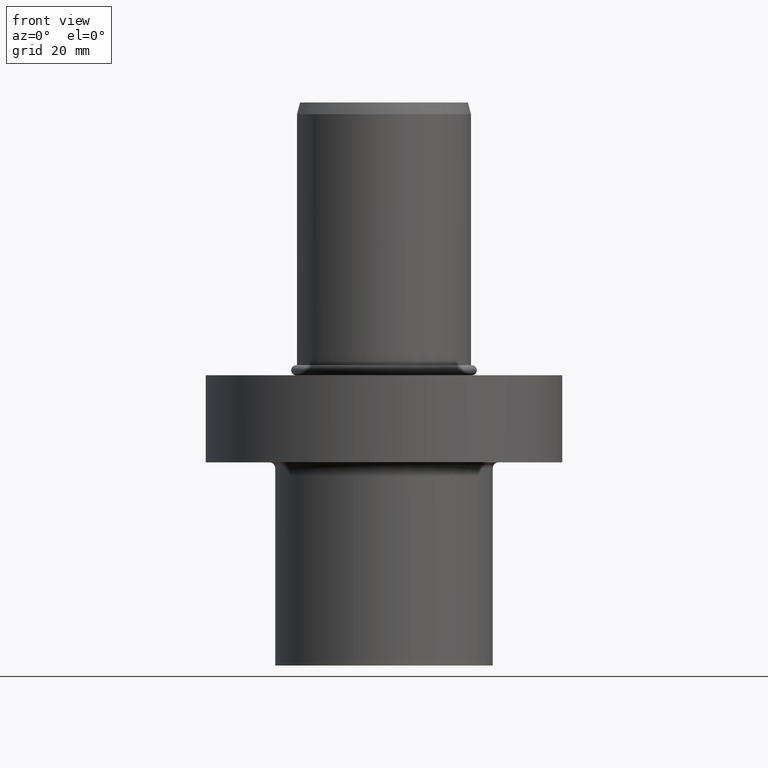
[diagram: clean part render]
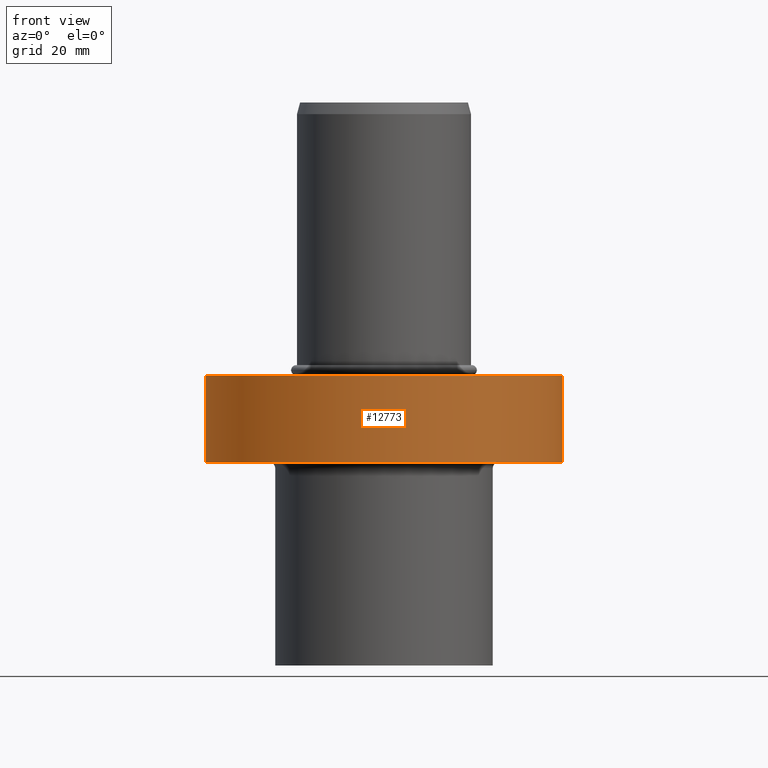
[diagram: same view with one face highlighted and labeled with its STEP entity id]
A machine part, front view. The second image highlights one B-rep face of the part: STEP entity #12773.
In plain terms, the highlighted cylindrical surface (partial cylindrical patch) has radius 61.5 mm, axis along (-0, -0, -1).
Its self-contained STEP definition (entity closure, byte-faithful):
#141 = CARTESIAN_POINT ( 'NONE',  ( 44.45222154178579643, 42.50000000000000000, -2.494550083694779877E-14 ) ) ;
#223 = ORIENTED_EDGE ( 'NONE', *, *, #4368, .T. ) ;
#452 = EDGE_CURVE ( 'NONE', #826, #4842, #10044, .T. ) ;
#801 = EDGE_CURVE ( 'NONE', #4842, #6019, #3290, .T. ) ;
#826 = VERTEX_POINT ( 'NONE', #4702 ) ;
#976 = ORIENTED_EDGE ( 'NONE', *, *, #801, .T. ) ;
#1078 = DIRECTION ( 'NONE',  ( 4.440892098500630106E-16, 1.224646799147350002E-16, 1.000000000000000000 ) ) ;
#1314 = CIRCLE ( 'NONE', #3181, 61.50000000000000000 ) ;
#3181 = AXIS2_PLACEMENT_3D ( 'NONE', #10764, #1078, #13231 ) ;
#3290 = CIRCLE ( 'NONE', #10640, 61.50000000000000000 ) ;
#3303 = CARTESIAN_POINT ( 'NONE',  ( 0.000000000000000000, 0.000000000000000000, 0.000000000000000000 ) ) ;
#3714 = DIRECTION ( 'NONE',  ( -4.440892098500630106E-16, -1.224646799147350002E-16, -1.000000000000000000 ) ) ;
#4368 = EDGE_CURVE ( 'NONE', #6019, #6784, #10957, .T. ) ;
#4397 = DIRECTION ( 'NONE',  ( -4.440892098500630106E-16, -1.224646799147350002E-16, -1.000000000000000000 ) ) ;
#4702 = CARTESIAN_POINT ( 'NONE',  ( 44.45222154178569696, 42.50000000000000000, -30.00000000000000000 ) ) ;
#4720 = VECTOR ( 'NONE', #8984, 1000.000000000000000 ) ;
#4842 = VERTEX_POINT ( 'NONE', #9436 ) ;
#4865 = DIRECTION ( 'NONE',  ( -1.000000000000000000, 4.440892098500630106E-16, 4.440892098500630106E-16 ) ) ;
#5280 = CARTESIAN_POINT ( 'NONE',  ( -44.45222154178569696, 42.50000000000000000, 1.453600304419530171E-14 ) ) ;
#5540 = DIRECTION ( 'NONE',  ( -2.603921899779599925E-16, -1.000000000000000000, 1.224646799147350002E-16 ) ) ;
#6019 = VERTEX_POINT ( 'NONE', #6521 ) ;
#6178 = CARTESIAN_POINT ( 'NONE',  ( -44.45222154178569696, 42.50000000000000000, -30.00000000000000000 ) ) ;
#6521 = CARTESIAN_POINT ( 'NONE',  ( -44.45222154178569696, 42.50000000000000000, 1.453600304419530171E-14 ) ) ;
#6641 = ORIENTED_EDGE ( 'NONE', *, *, #11681, .T. ) ;
#6784 = VERTEX_POINT ( 'NONE', #6178 ) ;
#7051 = CARTESIAN_POINT ( 'NONE',  ( 0.000000000000000000, 0.000000000000000000, 0.000000000000000000 ) ) ;
#8694 = DIRECTION ( 'NONE',  ( -4.440892098500630106E-16, -1.224646799147350002E-16, -1.000000000000000000 ) ) ;
#8886 = FACE_OUTER_BOUND ( 'NONE', #13284, .T. ) ;
#8984 = DIRECTION ( 'NONE',  ( 4.440892098500630106E-16, 1.224646799147350002E-16, 1.000000000000000000 ) ) ;
#9436 = CARTESIAN_POINT ( 'NONE',  ( 44.45222154178579643, 42.50000000000000000, -2.494550083694779877E-14 ) ) ;
#10015 = CYLINDRICAL_SURFACE ( 'NONE', #12891, 61.50000000000000000 ) ;
#10044 = LINE ( 'NONE', #141, #4720 ) ;
#10526 = VECTOR ( 'NONE', #8694, 1000.000000000000000 ) ;
#10640 = AXIS2_PLACEMENT_3D ( 'NONE', #7051, #3714, #4865 ) ;
#10764 = CARTESIAN_POINT ( 'NONE',  ( -1.332267629550189900E-14, -3.673940397442059967E-15, -30.00000000000000000 ) ) ;
#10957 = LINE ( 'NONE', #5280, #10526 ) ;
#11681 = EDGE_CURVE ( 'NONE', #6784, #826, #1314, .T. ) ;
#12773 = ADVANCED_FACE ( 'Defeature completata1_67', ( #8886 ), #10015, .T. ) ;
#12891 = AXIS2_PLACEMENT_3D ( 'NONE', #3303, #4397, #5540 ) ;
#13231 = DIRECTION ( 'NONE',  ( -1.000000000000000000, 4.440892098500630106E-16, 4.513101726118522915E-16 ) ) ;
#13284 = EDGE_LOOP ( 'NONE', ( #6641, #13380, #976, #223 ) ) ;
#13380 = ORIENTED_EDGE ( 'NONE', *, *, #452, .T. ) ;